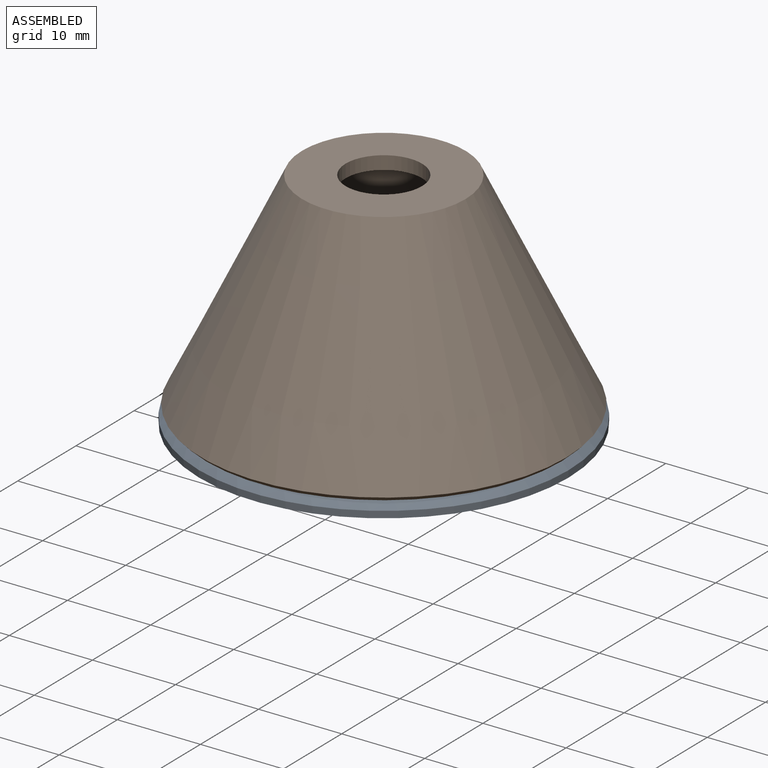
[diagram: assembled view]
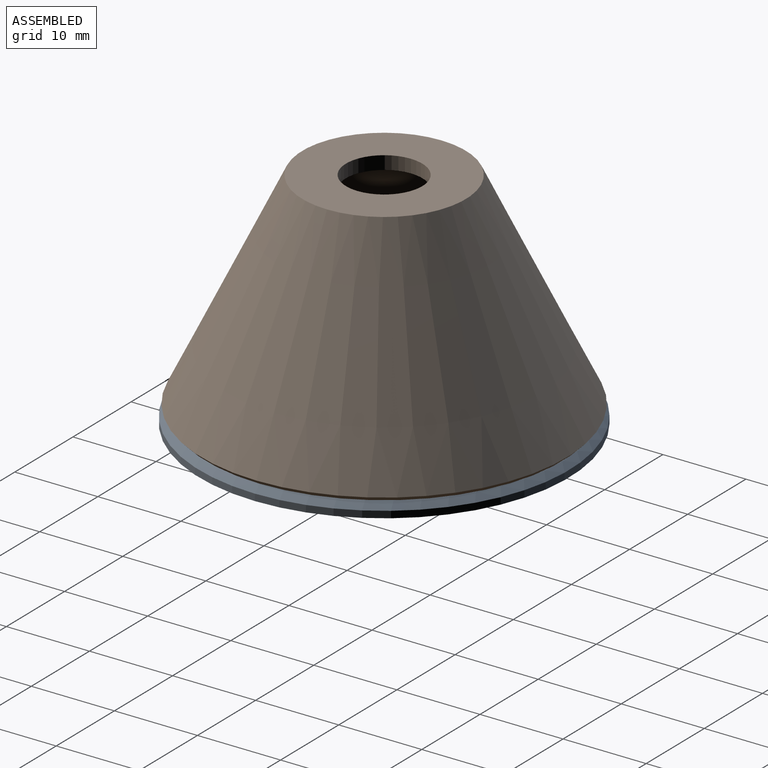
[diagram: assembled view, second angle]
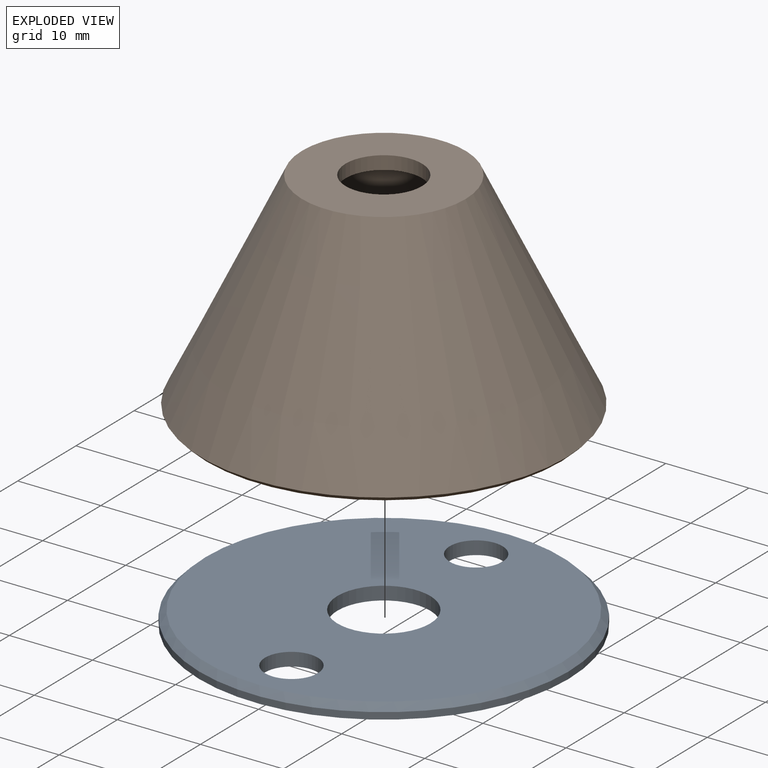
[diagram: exploded view]
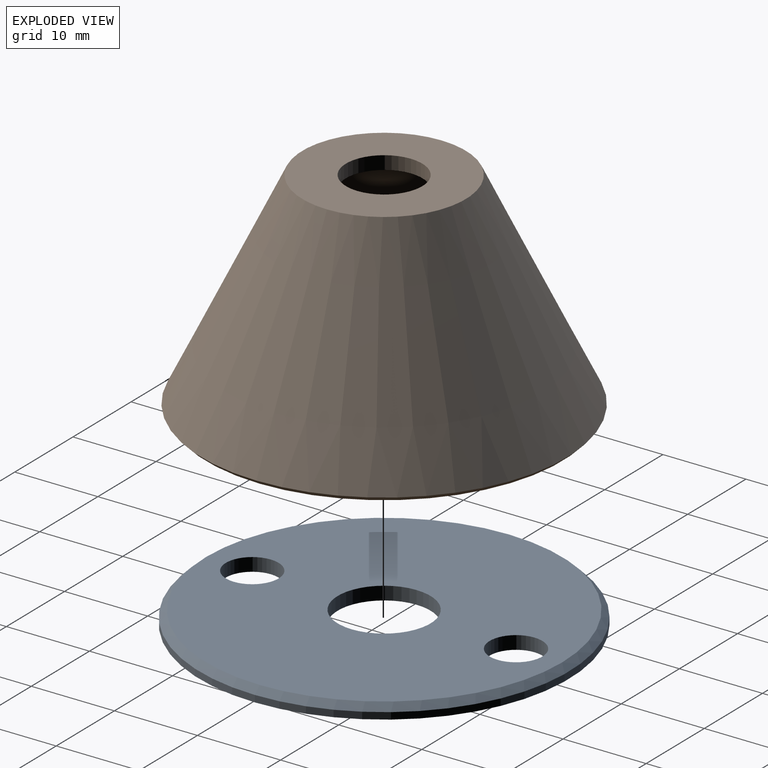
[diagram: exploded view, second angle]
ASSEMBLY  parts=2 mates=2
PART A: 7 faces, bbox 44.5x44.5x1.6 mm
  f0: cylinder r=22.23mm len=44.45mm, axis (0,0,-1), area 113.1mm2, adj f2,f6
  f1: plane 42.87x42.87mm, normal (0,0,1), area 1281.9mm2, adj f3,f4,f5,f6
  f2: plane 44.45x44.45mm, normal (0,0,-1), area 1390.3mm2, adj f0,f3,f4,f5
  f3: cylinder r=5.59mm len=11.18mm, axis (0,0,1), area 56.2mm2, adj f1,f2
  f4: cylinder r=3.17mm len=6.35mm, axis (0,0,1), area 31.9mm2, adj f1,f2
  f5: cylinder r=3.17mm len=6.35mm, axis (0,0,1), area 31.9mm2, adj f1,f2
  f6: cone r=21.43mm half-angle=45deg, axis (0,0,-1), area 153.2mm2, adj f0,f1
PART B: 7 faces, bbox 43.9x43.9x25.4 mm
  f0: plane 42.87x42.87mm, normal (0,0,-1), area 130.3mm2, adj f3,f6
  f1: cone r=22.23mm half-angle=26deg, axis (0,0,-1), area 2764.5mm2, adj f2,f6
  f2: plane 19.67x19.67mm, normal (0,0,1), area 237.6mm2, adj f1,f5
  f3: cone r=20.79mm half-angle=26deg, axis (0,0,-1), area 2435.9mm2, adj f0,f4
  f4: plane 17.67x17.67mm, normal (0,0,-1), area 179mm2, adj f3,f5
  f5: cylinder r=4.59mm len=9.19mm, axis (0,0,1), area 46.2mm2, adj f2,f4
  f6: cone r=21.97mm half-angle=45deg, axis (0,0,1), area 102.4mm2, adj f0,f1
PLACE A t=(0.03,1.49,-20.27)mm
PLACE B t=(0.03,1.49,-18.67)mm
MATE planar B.f1 <-> A.f0  axis (0,0,-1) through (0.03,1.49,-18.67)mm
MATE cylindrical B.f5 <-> A.f3  axis (0,0,-1) through (0.03,1.49,5.13)mm
